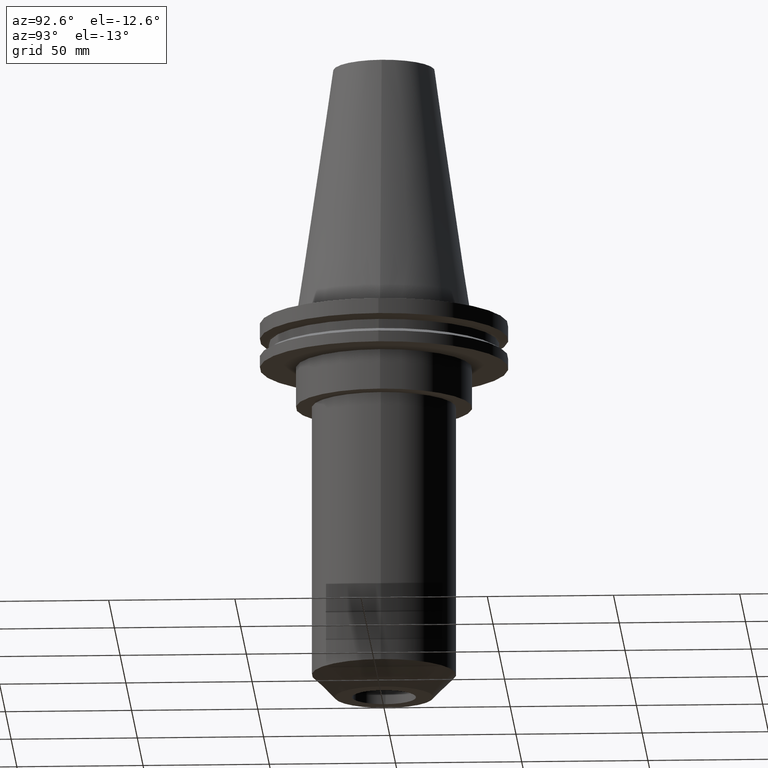
[diagram: clean part render]
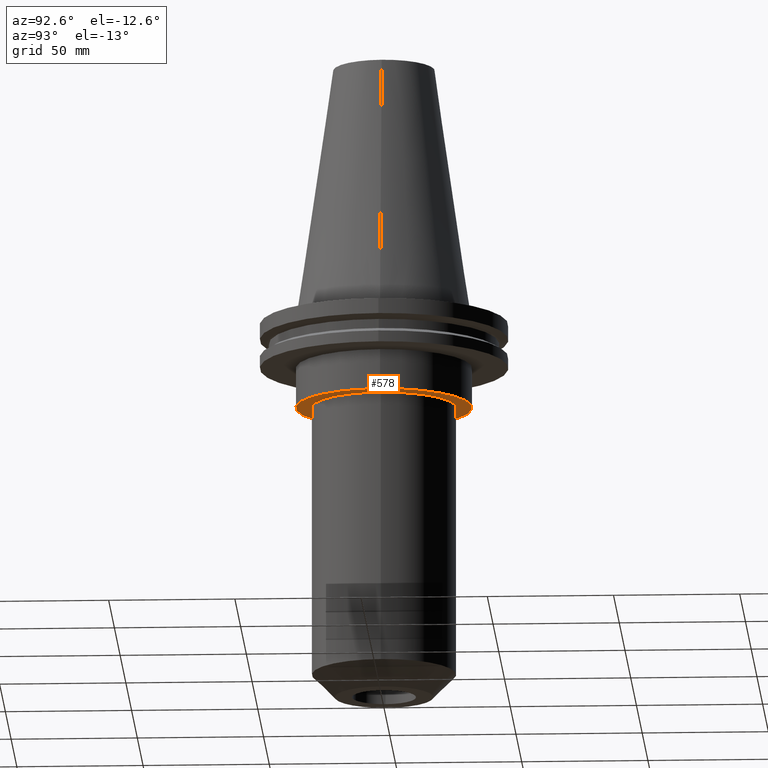
[diagram: same view with one face highlighted and labeled with its STEP entity id]
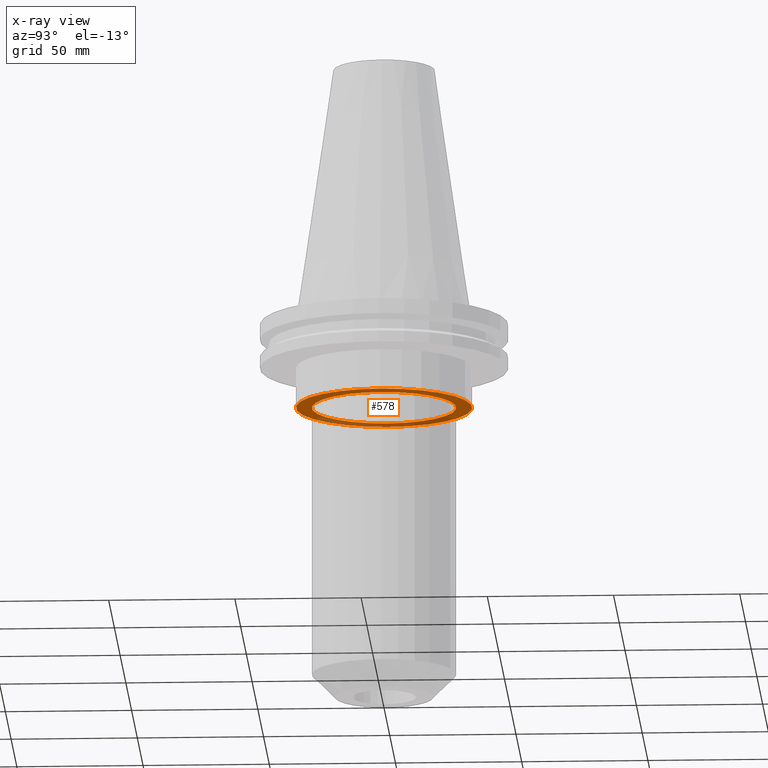
[diagram: x-ray of the same camera — body ghosted, the highlighted face saturated]
A machine part, auxiliary view. The second image highlights one B-rep face of the part: STEP entity #578.
The next image is the same camera in x-ray: the body ghosted, the highlighted face saturated — about 31% of this face is hidden behind the body in this view.
In plain terms, the highlighted planar face has unit normal (0, -0, 1).
Its self-contained STEP definition (entity closure, byte-faithful):
#34 = FACE_OUTER_BOUND ( 'NONE', #239, .T. ) ;
#42 = AXIS2_PLACEMENT_3D ( 'NONE', #69, #790, #206 ) ;
#49 = VERTEX_POINT ( 'NONE', #585 ) ;
#69 = CARTESIAN_POINT ( 'NONE',  ( 0.000000000000000000, 0.000000000000000000, -35.04999999999999716 ) ) ;
#91 = EDGE_CURVE ( 'NONE', #49, #636, #287, .T. ) ;
#92 = AXIS2_PLACEMENT_3D ( 'NONE', #333, #600, #482 ) ;
#109 = CIRCLE ( 'NONE', #564, 34.92499999999999716 ) ;
#112 = DIRECTION ( 'NONE',  ( 0.000000000000000000, -0.000000000000000000, 1.000000000000000000 ) ) ;
#122 = CARTESIAN_POINT ( 'NONE',  ( -28.59999999999999432, 3.502489845561429418E-15, -35.04999999999999716 ) ) ;
#153 = VERTEX_POINT ( 'NONE', #122 ) ;
#160 = EDGE_CURVE ( 'NONE', #636, #49, #109, .T. ) ;
#188 = ORIENTED_EDGE ( 'NONE', *, *, #91, .F. ) ;
#206 = DIRECTION ( 'NONE',  ( 1.000000000000000000, 0.000000000000000000, 0.000000000000000000 ) ) ;
#208 = DIRECTION ( 'NONE',  ( -0.000000000000000000, -0.000000000000000000, 1.000000000000000000 ) ) ;
#239 = EDGE_LOOP ( 'NONE', ( #416, #188 ) ) ;
#257 = CARTESIAN_POINT ( 'NONE',  ( 0.000000000000000000, 0.000000000000000000, -35.04999999999999716 ) ) ;
#287 = CIRCLE ( 'NONE', #92, 34.92499999999999716 ) ;
#304 = FACE_BOUND ( 'NONE', #837, .T. ) ;
#333 = CARTESIAN_POINT ( 'NONE',  ( 0.000000000000000000, 0.000000000000000000, -35.04999999999999716 ) ) ;
#340 = ORIENTED_EDGE ( 'NONE', *, *, #735, .F. ) ;
#381 = VERTEX_POINT ( 'NONE', #748 ) ;
#398 = DIRECTION ( 'NONE',  ( 0.000000000000000000, 0.000000000000000000, -1.000000000000000000 ) ) ;
#416 = ORIENTED_EDGE ( 'NONE', *, *, #160, .F. ) ;
#417 = CIRCLE ( 'NONE', #697, 28.59999999999999432 ) ;
#482 = DIRECTION ( 'NONE',  ( 1.000000000000000000, 0.000000000000000000, 0.000000000000000000 ) ) ;
#489 = CIRCLE ( 'NONE', #42, 28.59999999999999432 ) ;
#564 = AXIS2_PLACEMENT_3D ( 'NONE', #852, #208, #661 ) ;
#566 = PLANE ( 'NONE',  #763 ) ;
#578 = ADVANCED_FACE ( 'NONE', ( #34, #304 ), #566, .F. ) ;
#585 = CARTESIAN_POINT ( 'NONE',  ( -34.92499999999999716, 4.277078946022130887E-15, -35.04999999999999716 ) ) ;
#600 = DIRECTION ( 'NONE',  ( -0.000000000000000000, -0.000000000000000000, 1.000000000000000000 ) ) ;
#636 = VERTEX_POINT ( 'NONE', #776 ) ;
#643 = DIRECTION ( 'NONE',  ( 1.000000000000000000, 0.000000000000000000, 0.000000000000000000 ) ) ;
#661 = DIRECTION ( 'NONE',  ( 1.000000000000000000, 0.000000000000000000, 0.000000000000000000 ) ) ;
#697 = AXIS2_PLACEMENT_3D ( 'NONE', #257, #398, #724 ) ;
#702 = EDGE_CURVE ( 'NONE', #153, #381, #489, .T. ) ;
#703 = CARTESIAN_POINT ( 'NONE',  ( 0.000000000000000000, 34.92499999999999716, -35.04999999999999716 ) ) ;
#724 = DIRECTION ( 'NONE',  ( 1.000000000000000000, 0.000000000000000000, 0.000000000000000000 ) ) ;
#735 = EDGE_CURVE ( 'NONE', #381, #153, #417, .T. ) ;
#748 = CARTESIAN_POINT ( 'NONE',  ( 28.59999999999999432, 0.000000000000000000, -35.04999999999999716 ) ) ;
#763 = AXIS2_PLACEMENT_3D ( 'NONE', #703, #112, #643 ) ;
#776 = CARTESIAN_POINT ( 'NONE',  ( 34.92499999999999716, 0.000000000000000000, -35.04999999999999716 ) ) ;
#790 = DIRECTION ( 'NONE',  ( 0.000000000000000000, 0.000000000000000000, -1.000000000000000000 ) ) ;
#837 = EDGE_LOOP ( 'NONE', ( #340, #841 ) ) ;
#841 = ORIENTED_EDGE ( 'NONE', *, *, #702, .F. ) ;
#852 = CARTESIAN_POINT ( 'NONE',  ( 0.000000000000000000, 0.000000000000000000, -35.04999999999999716 ) ) ;